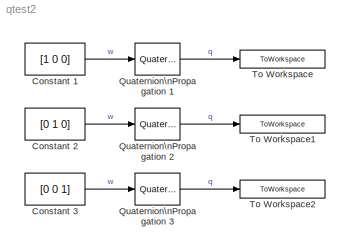
MODEL qtest2
KIND model
BLOCK [Constant] Constant 1
  Value = [1 0 0]
BLOCK [Constant] Constant 2
  Value = [0 1 0]
BLOCK [Constant] Constant 3
  Value = [0 0 1]
BLOCK [Reference] Quaternion\nPropagation 1  REF=qlib/Quaternion\nPropagation  (lib defined in mdl_ab4d631060dc, slx_f623738634e3)
  FunctionWithSeparateData = off
  Ports = [1, 1]
  RTWMemSecDataConstants = Inherit from model
  RTWMemSecDataInternal = Inherit from model
  RTWMemSecDataParameters = Inherit from model
  RTWMemSecFuncExecute = Inherit from model
  RTWMemSecFuncInitTerm = Inherit from model
  ShowPortLabels = FromPortIcon
  SourceBlock = qlib/Quaternion\nPropagation
  SourceType = Quaternion Propagation
  SystemSampleTime = -1
  q0 = [0 0 0 1]
BLOCK [Reference] Quaternion\nPropagation 2  REF=qlib/Quaternion\nPropagation  (lib defined in mdl_ab4d631060dc, slx_f623738634e3)
  FunctionWithSeparateData = off
  Ports = [1, 1]
  RTWMemSecDataConstants = Inherit from model
  RTWMemSecDataInternal = Inherit from model
  RTWMemSecDataParameters = Inherit from model
  RTWMemSecFuncExecute = Inherit from model
  RTWMemSecFuncInitTerm = Inherit from model
  ShowPortLabels = FromPortIcon
  SourceBlock = qlib/Quaternion\nPropagation
  SourceType = Quaternion Propagation
  SystemSampleTime = -1
  q0 = [0 0 0 1]
BLOCK [Reference] Quaternion\nPropagation 3  REF=qlib/Quaternion\nPropagation  (lib defined in mdl_ab4d631060dc, slx_f623738634e3)
  FunctionWithSeparateData = off
  Ports = [1, 1]
  RTWMemSecDataConstants = Inherit from model
  RTWMemSecDataInternal = Inherit from model
  RTWMemSecDataParameters = Inherit from model
  RTWMemSecFuncExecute = Inherit from model
  RTWMemSecFuncInitTerm = Inherit from model
  ShowPortLabels = FromPortIcon
  SourceBlock = qlib/Quaternion\nPropagation
  SourceType = Quaternion Propagation
  SystemSampleTime = -1
  q0 = [0 0 0 1]
BLOCK [ToWorkspace] To Workspace
  Decimation = decimation
  MaxDataPoints = 10000
  SampleTime = -1
  SaveFormat = Array
  VariableName = xrot
BLOCK [ToWorkspace] To Workspace1
  Decimation = decimation
  MaxDataPoints = 10000
  SampleTime = -1
  SaveFormat = Array
  VariableName = yrot
BLOCK [ToWorkspace] To Workspace2
  Decimation = decimation
  MaxDataPoints = 10000
  SampleTime = -1
  SaveFormat = Array
  VariableName = zrot
LINE Constant 1:1 -> Quaternion\nPropagation 1:1
LINE Constant 2:1 -> Quaternion\nPropagation 2:1
LINE Constant 3:1 -> Quaternion\nPropagation 3:1
LINE Quaternion\nPropagation 1:1 -> To Workspace:1
LINE Quaternion\nPropagation 2:1 -> To Workspace1:1
LINE Quaternion\nPropagation 3:1 -> To Workspace2:1
